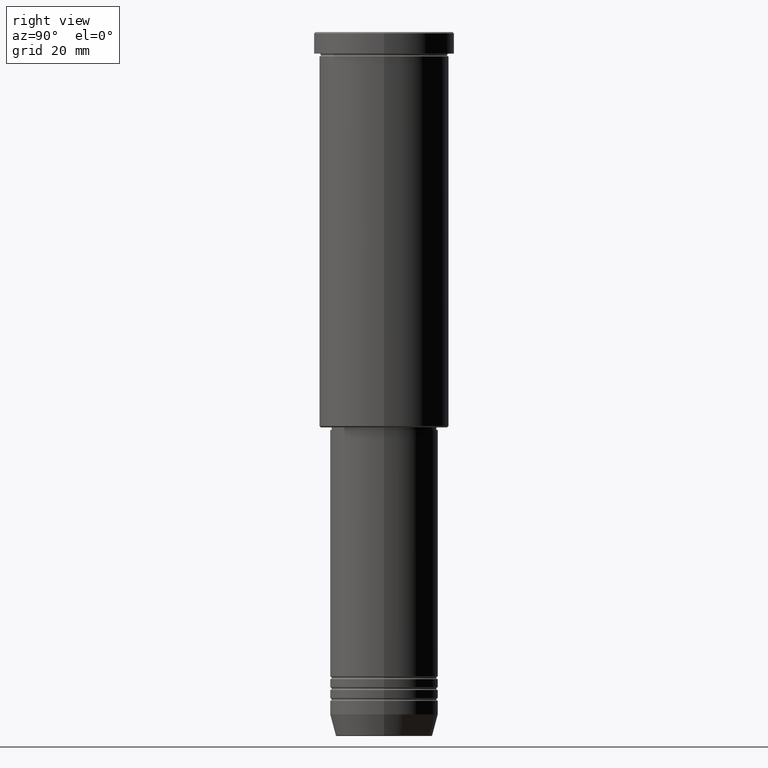
[diagram: clean part render]
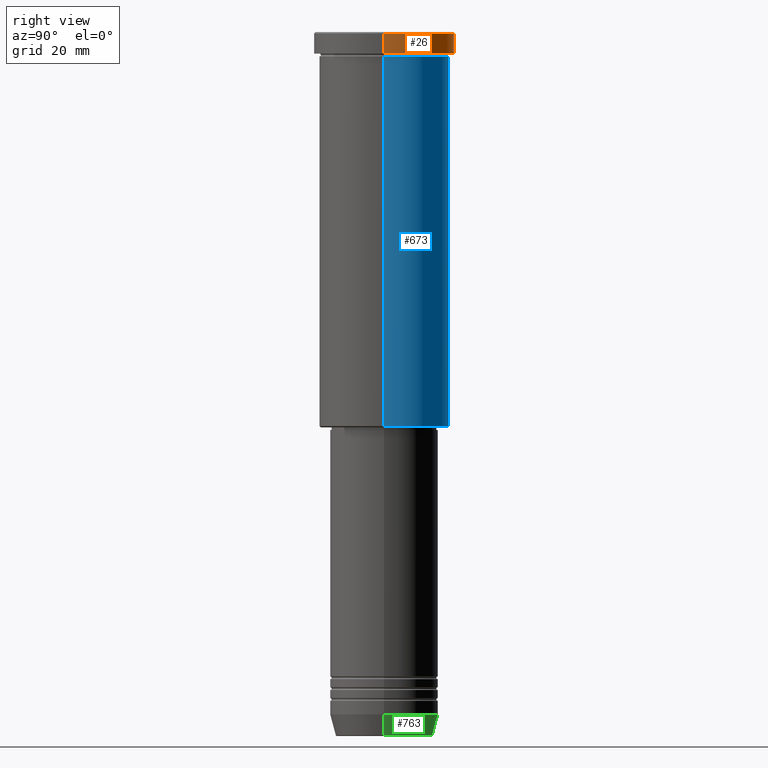
[diagram: same view with three faces highlighted in distinct colors, each labeled with its STEP entity id]
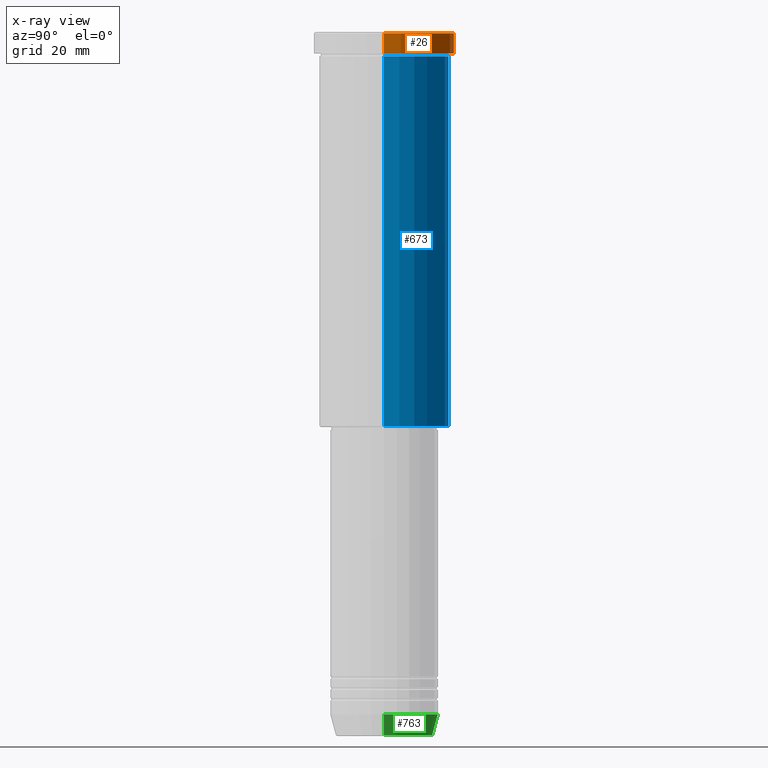
[diagram: x-ray of the same camera — body ghosted, the three highlighted faces saturated]
A machine part, right view with three faces highlighted in distinct colors.
The next image is the same camera in x-ray (body ghosted, the three faces saturated) — at least one of them is partly hidden behind the body in this view.
Their STEP definitions:

[orange] entity #26 — the highlighted cylindrical surface (partial cylindrical patch) has radius 26 mm, axis along (-0, -0, 1).
#12 = CIRCLE ( 'NONE', #809, 26.00000000000000000 ) ;
#26 = ADVANCED_FACE ( 'NONE', ( #612 ), #288, .T. ) ;
#37 = CARTESIAN_POINT ( 'NONE',  ( -26.00000000000000000, 3.184081677783118191E-15, 0.000000000000000000 ) ) ;
#113 = DIRECTION ( 'NONE',  ( 0.000000000000000000, 0.000000000000000000, -1.000000000000000000 ) ) ;
#151 = ORIENTED_EDGE ( 'NONE', *, *, #652, .T. ) ;
#196 = AXIS2_PLACEMENT_3D ( 'NONE', #925, #559, #267 ) ;
#226 = EDGE_CURVE ( 'NONE', #528, #988, #852, .T. ) ;
#267 = DIRECTION ( 'NONE',  ( 1.000000000000000000, 0.000000000000000000, 0.000000000000000000 ) ) ;
#288 = CYLINDRICAL_SURFACE ( 'NONE', #196, 26.00000000000000000 ) ;
#317 = VECTOR ( 'NONE', #962, 1000.000000000000000 ) ;
#401 = DIRECTION ( 'NONE',  ( -0.000000000000000000, -0.000000000000000000, 1.000000000000000000 ) ) ;
#446 = ORIENTED_EDGE ( 'NONE', *, *, #226, .T. ) ;
#500 = VECTOR ( 'NONE', #401, 1000.000000000000000 ) ;
#528 = VERTEX_POINT ( 'NONE', #643 ) ;
#540 = CIRCLE ( 'NONE', #1038, 26.00000000000000000 ) ;
#559 = DIRECTION ( 'NONE',  ( -0.000000000000000000, -0.000000000000000000, 1.000000000000000000 ) ) ;
#612 = FACE_OUTER_BOUND ( 'NONE', #628, .T. ) ;
#628 = EDGE_LOOP ( 'NONE', ( #857, #446, #151, #887 ) ) ;
#643 = CARTESIAN_POINT ( 'NONE',  ( -26.00000000000000000, 3.184081677783118191E-15, -7.999999999999992895 ) ) ;
#649 = CARTESIAN_POINT ( 'NONE',  ( 0.000000000000000000, 0.000000000000000000, -7.999999999999992895 ) ) ;
#652 = EDGE_CURVE ( 'NONE', #988, #714, #540, .T. ) ;
#714 = VERTEX_POINT ( 'NONE', #1114 ) ;
#761 = CARTESIAN_POINT ( 'NONE',  ( 0.000000000000000000, 0.000000000000000000, -0.5000000000000247580 ) ) ;
#773 = CARTESIAN_POINT ( 'NONE',  ( 26.00000000000000000, 0.000000000000000000, -7.999999999999992895 ) ) ;
#775 = VERTEX_POINT ( 'NONE', #773 ) ;
#796 = DIRECTION ( 'NONE',  ( -0.000000000000000000, -0.000000000000000000, 1.000000000000000000 ) ) ;
#809 = AXIS2_PLACEMENT_3D ( 'NONE', #649, #796, #913 ) ;
#843 = EDGE_CURVE ( 'NONE', #775, #714, #1063, .T. ) ;
#852 = LINE ( 'NONE', #37, #500 ) ;
#857 = ORIENTED_EDGE ( 'NONE', *, *, #994, .T. ) ;
#887 = ORIENTED_EDGE ( 'NONE', *, *, #843, .F. ) ;
#913 = DIRECTION ( 'NONE',  ( 1.000000000000000000, 0.000000000000000000, 0.000000000000000000 ) ) ;
#925 = CARTESIAN_POINT ( 'NONE',  ( 0.000000000000000000, 0.000000000000000000, 0.000000000000000000 ) ) ;
#947 = CARTESIAN_POINT ( 'NONE',  ( 26.00000000000000000, 0.000000000000000000, 0.000000000000000000 ) ) ;
#962 = DIRECTION ( 'NONE',  ( -0.000000000000000000, -0.000000000000000000, 1.000000000000000000 ) ) ;
#988 = VERTEX_POINT ( 'NONE', #989 ) ;
#989 = CARTESIAN_POINT ( 'NONE',  ( -26.00000000000000000, 3.184081677783118191E-15, -0.5000000000000247580 ) ) ;
#994 = EDGE_CURVE ( 'NONE', #775, #528, #12, .T. ) ;
#1015 = DIRECTION ( 'NONE',  ( 1.000000000000000000, 0.000000000000000000, 0.000000000000000000 ) ) ;
#1038 = AXIS2_PLACEMENT_3D ( 'NONE', #761, #113, #1015 ) ;
#1063 = LINE ( 'NONE', #947, #317 ) ;
#1114 = CARTESIAN_POINT ( 'NONE',  ( 26.00000000000000000, 0.000000000000000000, -0.5000000000000247580 ) ) ;

[blue] entity #673 — the highlighted cylindrical surface (partial cylindrical patch) has radius 24 mm, axis along (-0, -0, 1).
#64 = CIRCLE ( 'NONE', #806, 24.00000000000000000 ) ;
#72 = VERTEX_POINT ( 'NONE', #382 ) ;
#110 = ORIENTED_EDGE ( 'NONE', *, *, #1088, .T. ) ;
#123 = AXIS2_PLACEMENT_3D ( 'NONE', #679, #215, #1042 ) ;
#135 = FACE_OUTER_BOUND ( 'NONE', #880, .T. ) ;
#164 = VECTOR ( 'NONE', #1058, 1000.000000000000000 ) ;
#174 = DIRECTION ( 'NONE',  ( -1.000000000000000000, 0.000000000000000000, 0.000000000000000000 ) ) ;
#215 = DIRECTION ( 'NONE',  ( -0.000000000000000000, -0.000000000000000000, 1.000000000000000000 ) ) ;
#217 = EDGE_CURVE ( 'NONE', #946, #72, #236, .T. ) ;
#236 = CIRCLE ( 'NONE', #123, 24.00000000000000000 ) ;
#308 = DIRECTION ( 'NONE',  ( 1.000000000000000000, 0.000000000000000000, 0.000000000000000000 ) ) ;
#312 = CYLINDRICAL_SURFACE ( 'NONE', #662, 24.00000000000000000 ) ;
#339 = LINE ( 'NONE', #702, #164 ) ;
#382 = CARTESIAN_POINT ( 'NONE',  ( -24.00000000000000000, 2.939152317953647894E-15, -8.999999999999994671 ) ) ;
#447 = DIRECTION ( 'NONE',  ( -0.000000000000000000, -0.000000000000000000, 1.000000000000000000 ) ) ;
#493 = VERTEX_POINT ( 'NONE', #812 ) ;
#633 = VERTEX_POINT ( 'NONE', #939 ) ;
#656 = DIRECTION ( 'NONE',  ( -0.000000000000000000, -0.000000000000000000, 1.000000000000000000 ) ) ;
#661 = CARTESIAN_POINT ( 'NONE',  ( -24.00000000000000000, 2.939152317953647894E-15, 0.000000000000000000 ) ) ;
#662 = AXIS2_PLACEMENT_3D ( 'NONE', #676, #656, #308 ) ;
#671 = LINE ( 'NONE', #661, #827 ) ;
#673 = ADVANCED_FACE ( 'NONE', ( #135 ), #312, .T. ) ;
#676 = CARTESIAN_POINT ( 'NONE',  ( 0.000000000000000000, 0.000000000000000000, 0.000000000000000000 ) ) ;
#679 = CARTESIAN_POINT ( 'NONE',  ( 0.000000000000000000, 0.000000000000000000, -8.999999999999994671 ) ) ;
#702 = CARTESIAN_POINT ( 'NONE',  ( 24.00000000000000000, 0.000000000000000000, 0.000000000000000000 ) ) ;
#742 = ORIENTED_EDGE ( 'NONE', *, *, #217, .F. ) ;
#806 = AXIS2_PLACEMENT_3D ( 'NONE', #811, #447, #174 ) ;
#811 = CARTESIAN_POINT ( 'NONE',  ( 0.000000000000000000, 0.000000000000000000, -145.4999999999999716 ) ) ;
#812 = CARTESIAN_POINT ( 'NONE',  ( -24.00000000000000000, 2.939152317953647894E-15, -145.4999999999999716 ) ) ;
#827 = VECTOR ( 'NONE', #1023, 1000.000000000000000 ) ;
#840 = EDGE_CURVE ( 'NONE', #633, #946, #339, .T. ) ;
#880 = EDGE_LOOP ( 'NONE', ( #982, #110, #742, #1014 ) ) ;
#939 = CARTESIAN_POINT ( 'NONE',  ( 24.00000000000000000, 0.000000000000000000, -145.4999999999999716 ) ) ;
#946 = VERTEX_POINT ( 'NONE', #983 ) ;
#982 = ORIENTED_EDGE ( 'NONE', *, *, #986, .T. ) ;
#983 = CARTESIAN_POINT ( 'NONE',  ( 24.00000000000000000, 0.000000000000000000, -8.999999999999994671 ) ) ;
#986 = EDGE_CURVE ( 'NONE', #633, #493, #64, .T. ) ;
#1014 = ORIENTED_EDGE ( 'NONE', *, *, #840, .F. ) ;
#1023 = DIRECTION ( 'NONE',  ( -0.000000000000000000, -0.000000000000000000, 1.000000000000000000 ) ) ;
#1042 = DIRECTION ( 'NONE',  ( 1.000000000000000000, 0.000000000000000000, 0.000000000000000000 ) ) ;
#1058 = DIRECTION ( 'NONE',  ( -0.000000000000000000, -0.000000000000000000, 1.000000000000000000 ) ) ;
#1088 = EDGE_CURVE ( 'NONE', #493, #72, #671, .T. ) ;

[green] entity #763 — the highlighted conical surface has half-angle 15 deg.
#63 = DIRECTION ( 'NONE',  ( -0.000000000000000000, -0.000000000000000000, 1.000000000000000000 ) ) ;
#85 = LINE ( 'NONE', #454, #768 ) ;
#86 = CIRCLE ( 'NONE', #544, 17.95570587970608045 ) ;
#106 = CIRCLE ( 'NONE', #541, 20.00000000000000355 ) ;
#222 = DIRECTION ( 'NONE',  ( 0.2588190451025212391, 0.000000000000000000, 0.9659258262890680902 ) ) ;
#250 = DIRECTION ( 'NONE',  ( -0.000000000000000000, -0.000000000000000000, 1.000000000000000000 ) ) ;
#282 = CARTESIAN_POINT ( 'NONE',  ( 20.00000000000000355, 0.000000000000000000, -252.0000000000000000 ) ) ;
#297 = DIRECTION ( 'NONE',  ( 1.000000000000000000, 0.000000000000000000, 0.000000000000000000 ) ) ;
#306 = LINE ( 'NONE', #400, #844 ) ;
#318 = VERTEX_POINT ( 'NONE', #707 ) ;
#368 = CARTESIAN_POINT ( 'NONE',  ( -17.95570587970608045, 2.324116685748021371E-15, -259.6294095225512706 ) ) ;
#400 = CARTESIAN_POINT ( 'NONE',  ( 20.00000000000000355, 0.000000000000000000, -252.0000000000000000 ) ) ;
#410 = CARTESIAN_POINT ( 'NONE',  ( 0.000000000000000000, 0.000000000000000000, -252.0000000000000000 ) ) ;
#418 = CARTESIAN_POINT ( 'NONE',  ( 0.000000000000000000, 0.000000000000000000, -252.0000000000000000 ) ) ;
#454 = CARTESIAN_POINT ( 'NONE',  ( -20.00000000000000355, 2.449293598294706907E-15, -252.0000000000000000 ) ) ;
#496 = VERTEX_POINT ( 'NONE', #282 ) ;
#504 = AXIS2_PLACEMENT_3D ( 'NONE', #418, #250, #1068 ) ;
#536 = EDGE_CURVE ( 'NONE', #968, #318, #85, .T. ) ;
#541 = AXIS2_PLACEMENT_3D ( 'NONE', #410, #63, #684 ) ;
#544 = AXIS2_PLACEMENT_3D ( 'NONE', #564, #1113, #297 ) ;
#564 = CARTESIAN_POINT ( 'NONE',  ( 0.000000000000000000, 0.000000000000000000, -259.6294095225512706 ) ) ;
#589 = ORIENTED_EDGE ( 'NONE', *, *, #807, .F. ) ;
#604 = FACE_OUTER_BOUND ( 'NONE', #882, .T. ) ;
#644 = EDGE_CURVE ( 'NONE', #794, #496, #306, .T. ) ;
#683 = ORIENTED_EDGE ( 'NONE', *, *, #644, .F. ) ;
#684 = DIRECTION ( 'NONE',  ( 1.000000000000000000, 0.000000000000000000, 0.000000000000000000 ) ) ;
#692 = ORIENTED_EDGE ( 'NONE', *, *, #536, .T. ) ;
#707 = CARTESIAN_POINT ( 'NONE',  ( -20.00000000000000355, 2.449293598294706907E-15, -252.0000000000000000 ) ) ;
#763 = ADVANCED_FACE ( 'NONE', ( #604 ), #877, .T. ) ;
#768 = VECTOR ( 'NONE', #1001, 1000.000000000000114 ) ;
#794 = VERTEX_POINT ( 'NONE', #954 ) ;
#807 = EDGE_CURVE ( 'NONE', #496, #318, #106, .T. ) ;
#844 = VECTOR ( 'NONE', #222, 1000.000000000000114 ) ;
#877 = CONICAL_SURFACE ( 'NONE', #504, 20.00000000000000355, 0.2617993877991499629 ) ;
#882 = EDGE_LOOP ( 'NONE', ( #1079, #692, #589, #683 ) ) ;
#954 = CARTESIAN_POINT ( 'NONE',  ( 17.95570587970608045, 0.000000000000000000, -259.6294095225512706 ) ) ;
#968 = VERTEX_POINT ( 'NONE', #368 ) ;
#1001 = DIRECTION ( 'NONE',  ( -0.2588190451025212391, 3.169619151431771721E-17, 0.9659258262890680902 ) ) ;
#1068 = DIRECTION ( 'NONE',  ( 1.000000000000000000, 0.000000000000000000, 0.000000000000000000 ) ) ;
#1079 = ORIENTED_EDGE ( 'NONE', *, *, #1177, .T. ) ;
#1113 = DIRECTION ( 'NONE',  ( -0.000000000000000000, -0.000000000000000000, 1.000000000000000000 ) ) ;
#1177 = EDGE_CURVE ( 'NONE', #794, #968, #86, .T. ) ;